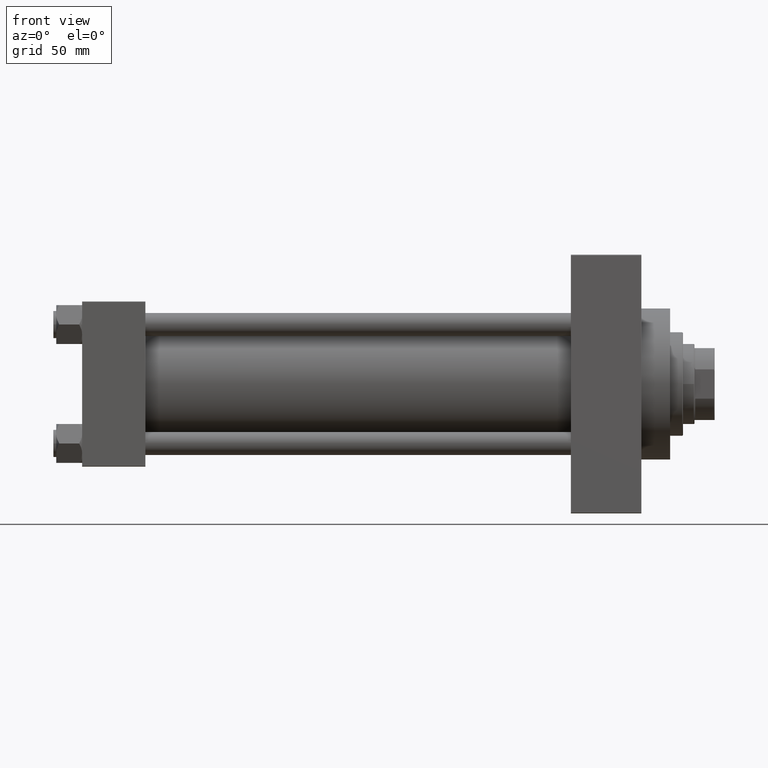
[diagram: clean part render]
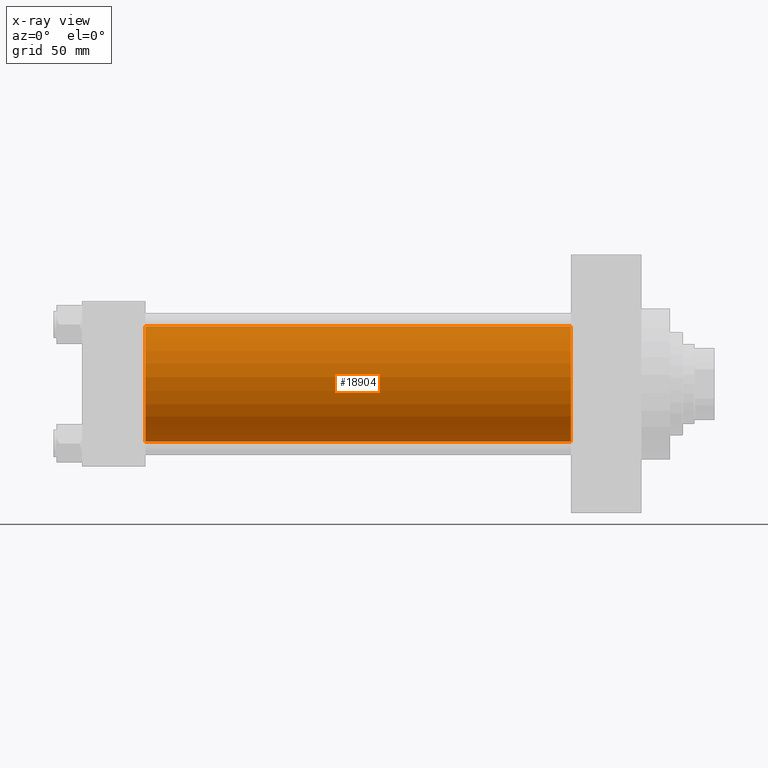
[diagram: x-ray — body ghosted, one internal face saturated and labeled with its STEP entity id]
A machine part, front view, then the same camera in x-ray: the body is ghosted and one INTERNAL B-rep face — a face not visible from any outside direction — is saturated and labeled: STEP entity #18904.
In plain terms, the highlighted cylindrical surface (partial cylindrical patch) has radius 40 mm, axis along (-1, -0, -0).
Its self-contained STEP definition (entity closure, byte-faithful):
#3607 = DIRECTION ( 'NONE',  ( 0.000000000000000000, 0.000000000000000000, -1.000000000000000000 ) ) ;
#3705 = LINE ( 'NONE', #27363, #11596 ) ;
#4186 = EDGE_CURVE ( 'NONE', #15812, #19569, #16874, .T. ) ;
#4361 = AXIS2_PLACEMENT_3D ( 'NONE', #13641, #12897, #32784 ) ;
#5009 = VECTOR ( 'NONE', #16021, 1000.000000000000000 ) ;
#6305 = CARTESIAN_POINT ( 'NONE',  ( 44.00000000000000000, 2.296501982624201990E-15, -40.00000000000000000 ) ) ;
#7723 = CARTESIAN_POINT ( 'NONE',  ( 339.9999999999999432, -2.602085213965210642E-15, 40.00000000000000000 ) ) ;
#9766 = VERTEX_POINT ( 'NONE', #17574 ) ;
#9807 = AXIS2_PLACEMENT_3D ( 'NONE', #14290, #13365, #49558 ) ;
#10760 = FACE_OUTER_BOUND ( 'NONE', #43367, .T. ) ;
#11596 = VECTOR ( 'NONE', #23312, 1000.000000000000000 ) ;
#12490 = CARTESIAN_POINT ( 'NONE',  ( 339.9999999999999432, -2.602085213965210642E-15, 40.00000000000000000 ) ) ;
#12897 = DIRECTION ( 'NONE',  ( 1.000000000000000000, 0.000000000000000000, 0.000000000000000000 ) ) ;
#13314 = CARTESIAN_POINT ( 'NONE',  ( 44.00000000000000000, -2.602085213965210642E-15, 40.00000000000000000 ) ) ;
#13365 = DIRECTION ( 'NONE',  ( -1.000000000000000000, -0.000000000000000000, -0.000000000000000000 ) ) ;
#13641 = CARTESIAN_POINT ( 'NONE',  ( 339.9999999999999432, -2.602085213965210642E-15, 0.000000000000000000 ) ) ;
#14290 = CARTESIAN_POINT ( 'NONE',  ( 339.9999999999999432, -2.602085213965210642E-15, 0.000000000000000000 ) ) ;
#15812 = VERTEX_POINT ( 'NONE', #13314 ) ;
#16021 = DIRECTION ( 'NONE',  ( -1.000000000000000000, -0.000000000000000000, -0.000000000000000000 ) ) ;
#16874 = CIRCLE ( 'NONE', #20898, 40.00000000000000000 ) ;
#17574 = CARTESIAN_POINT ( 'NONE',  ( 339.9999999999999432, 2.296501982624201990E-15, -40.00000000000000000 ) ) ;
#18904 = ADVANCED_FACE ( 'NONE', ( #10760 ), #49052, .F. ) ;
#19569 = VERTEX_POINT ( 'NONE', #6305 ) ;
#20898 = AXIS2_PLACEMENT_3D ( 'NONE', #45903, #46155, #3607 ) ;
#21954 = ORIENTED_EDGE ( 'NONE', *, *, #39529, .F. ) ;
#23312 = DIRECTION ( 'NONE',  ( -1.000000000000000000, -0.000000000000000000, -0.000000000000000000 ) ) ;
#24070 = LINE ( 'NONE', #12490, #5009 ) ;
#25042 = ORIENTED_EDGE ( 'NONE', *, *, #26514, .T. ) ;
#26514 = EDGE_CURVE ( 'NONE', #39388, #9766, #46950, .T. ) ;
#27363 = CARTESIAN_POINT ( 'NONE',  ( 339.9999999999999432, 2.296501982624201990E-15, -40.00000000000000000 ) ) ;
#27964 = EDGE_CURVE ( 'NONE', #9766, #19569, #3705, .T. ) ;
#32784 = DIRECTION ( 'NONE',  ( 0.000000000000000000, 0.000000000000000000, -1.000000000000000000 ) ) ;
#39388 = VERTEX_POINT ( 'NONE', #7723 ) ;
#39404 = ORIENTED_EDGE ( 'NONE', *, *, #27964, .T. ) ;
#39529 = EDGE_CURVE ( 'NONE', #39388, #15812, #24070, .T. ) ;
#43367 = EDGE_LOOP ( 'NONE', ( #25042, #39404, #44175, #21954 ) ) ;
#44175 = ORIENTED_EDGE ( 'NONE', *, *, #4186, .F. ) ;
#45903 = CARTESIAN_POINT ( 'NONE',  ( 44.00000000000000000, -2.602085213965210642E-15, 0.000000000000000000 ) ) ;
#46155 = DIRECTION ( 'NONE',  ( 1.000000000000000000, 0.000000000000000000, 0.000000000000000000 ) ) ;
#46950 = CIRCLE ( 'NONE', #4361, 40.00000000000000000 ) ;
#49052 = CYLINDRICAL_SURFACE ( 'NONE', #9807, 40.00000000000000000 ) ;
#49558 = DIRECTION ( 'NONE',  ( 0.000000000000000000, 0.000000000000000000, 1.000000000000000000 ) ) ;